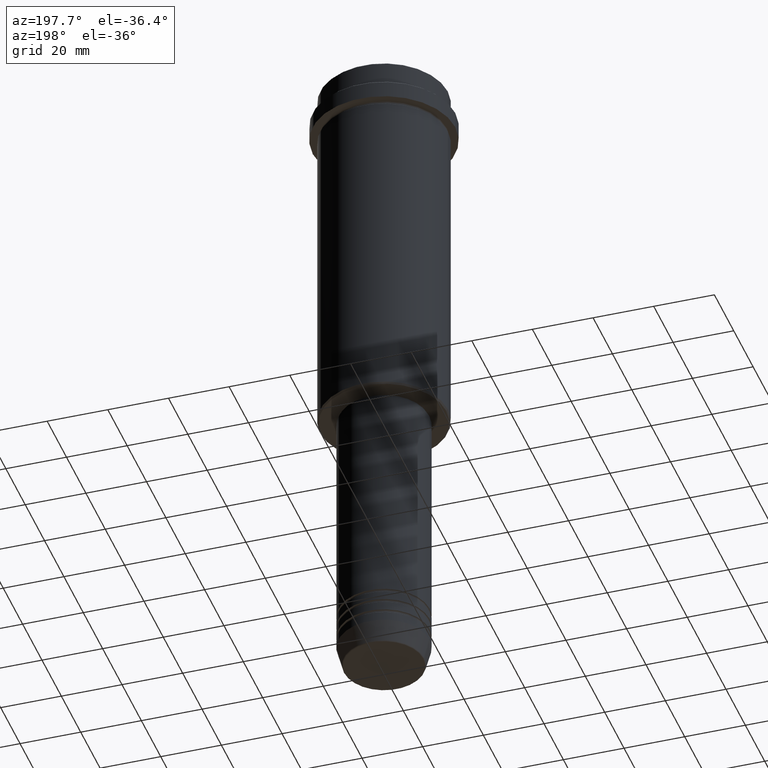
[diagram: clean part render]
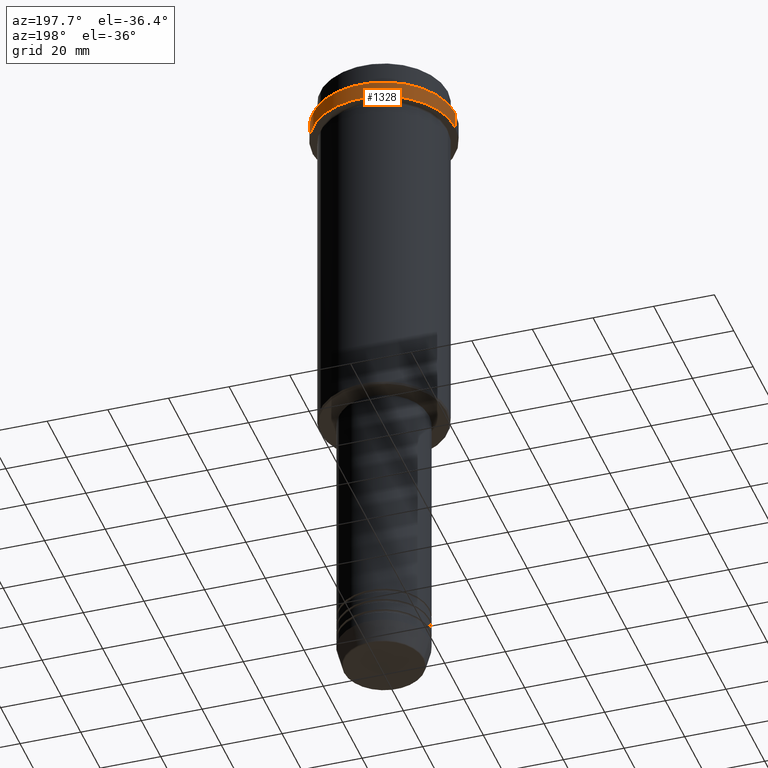
[diagram: same view with one face highlighted and labeled with its STEP entity id]
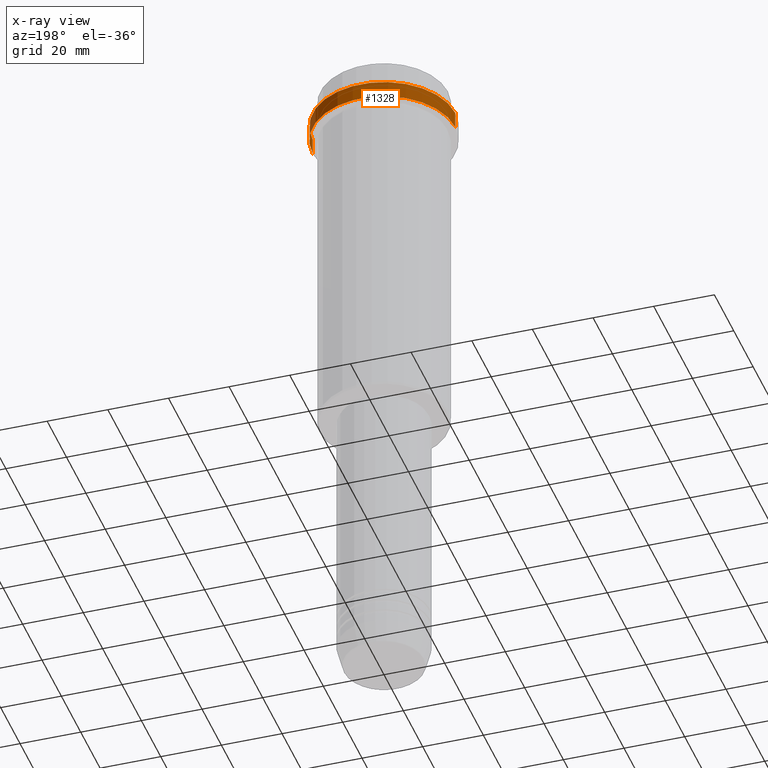
[diagram: x-ray of the same camera — body ghosted, the highlighted face saturated]
A machine part, auxiliary view. The second image highlights one B-rep face of the part: STEP entity #1328.
The next image is the same camera in x-ray: the body ghosted, the highlighted face saturated — about 0% of this face is hidden behind the body in this view.
In plain terms, the highlighted cylindrical surface (partial cylindrical patch) has radius 23.5 mm, axis along (-0, -0, 1).
Its self-contained STEP definition (entity closure, byte-faithful):
#10 = DIRECTION ( 'NONE',  ( 1.000000000000000000, 0.000000000000000000, 0.000000000000000000 ) ) ;
#47 = DIRECTION ( 'NONE',  ( -0.000000000000000000, -0.000000000000000000, 1.000000000000000000 ) ) ;
#133 = DIRECTION ( 'NONE',  ( -0.000000000000000000, -0.000000000000000000, 1.000000000000000000 ) ) ;
#149 = FACE_OUTER_BOUND ( 'NONE', #548, .T. ) ;
#153 = DIRECTION ( 'NONE',  ( 1.000000000000000000, 0.000000000000000000, 0.000000000000000000 ) ) ;
#173 = VECTOR ( 'NONE', #133, 1000.000000000000000 ) ;
#270 = CARTESIAN_POINT ( 'NONE',  ( 23.50000000000000355, 0.000000000000000000, -15.00000000000000178 ) ) ;
#295 = AXIS2_PLACEMENT_3D ( 'NONE', #1262, #1136, #153 ) ;
#321 = ORIENTED_EDGE ( 'NONE', *, *, #790, .F. ) ;
#418 = CARTESIAN_POINT ( 'NONE',  ( 23.50000000000000000, 0.000000000000000000, -9.499999999999973355 ) ) ;
#423 = LINE ( 'NONE', #645, #903 ) ;
#467 = CARTESIAN_POINT ( 'NONE',  ( 23.50000000000000000, 0.000000000000000000, 0.000000000000000000 ) ) ;
#501 = CARTESIAN_POINT ( 'NONE',  ( -23.50000000000000711, 2.877919977996281109E-15, -15.00000000000000178 ) ) ;
#510 = ORIENTED_EDGE ( 'NONE', *, *, #1047, .T. ) ;
#518 = VERTEX_POINT ( 'NONE', #270 ) ;
#545 = CIRCLE ( 'NONE', #559, 23.50000000000000355 ) ;
#548 = EDGE_LOOP ( 'NONE', ( #738, #1004, #510, #321 ) ) ;
#552 = CYLINDRICAL_SURFACE ( 'NONE', #1032, 23.50000000000000000 ) ;
#559 = AXIS2_PLACEMENT_3D ( 'NONE', #1046, #47, #1353 ) ;
#645 = CARTESIAN_POINT ( 'NONE',  ( -23.50000000000000000, 2.877919977996280320E-15, 0.000000000000000000 ) ) ;
#709 = EDGE_CURVE ( 'NONE', #1090, #1192, #423, .T. ) ;
#738 = ORIENTED_EDGE ( 'NONE', *, *, #1069, .T. ) ;
#745 = CARTESIAN_POINT ( 'NONE',  ( -23.50000000000000000, 2.877919977996280320E-15, -9.499999999999973355 ) ) ;
#790 = EDGE_CURVE ( 'NONE', #518, #1412, #1226, .T. ) ;
#871 = DIRECTION ( 'NONE',  ( -0.000000000000000000, -0.000000000000000000, 1.000000000000000000 ) ) ;
#903 = VECTOR ( 'NONE', #1067, 1000.000000000000000 ) ;
#981 = CARTESIAN_POINT ( 'NONE',  ( 0.000000000000000000, 0.000000000000000000, 0.000000000000000000 ) ) ;
#1004 = ORIENTED_EDGE ( 'NONE', *, *, #709, .T. ) ;
#1032 = AXIS2_PLACEMENT_3D ( 'NONE', #981, #871, #10 ) ;
#1046 = CARTESIAN_POINT ( 'NONE',  ( 0.000000000000000000, 0.000000000000000000, -15.00000000000000178 ) ) ;
#1047 = EDGE_CURVE ( 'NONE', #1192, #1412, #1245, .T. ) ;
#1067 = DIRECTION ( 'NONE',  ( -0.000000000000000000, -0.000000000000000000, 1.000000000000000000 ) ) ;
#1069 = EDGE_CURVE ( 'NONE', #518, #1090, #545, .T. ) ;
#1090 = VERTEX_POINT ( 'NONE', #501 ) ;
#1136 = DIRECTION ( 'NONE',  ( 0.000000000000000000, 0.000000000000000000, -1.000000000000000000 ) ) ;
#1192 = VERTEX_POINT ( 'NONE', #745 ) ;
#1226 = LINE ( 'NONE', #467, #173 ) ;
#1245 = CIRCLE ( 'NONE', #295, 23.50000000000000000 ) ;
#1262 = CARTESIAN_POINT ( 'NONE',  ( 0.000000000000000000, 0.000000000000000000, -9.499999999999973355 ) ) ;
#1328 = ADVANCED_FACE ( 'NONE', ( #149 ), #552, .T. ) ;
#1353 = DIRECTION ( 'NONE',  ( 1.000000000000000000, 0.000000000000000000, 0.000000000000000000 ) ) ;
#1412 = VERTEX_POINT ( 'NONE', #418 ) ;